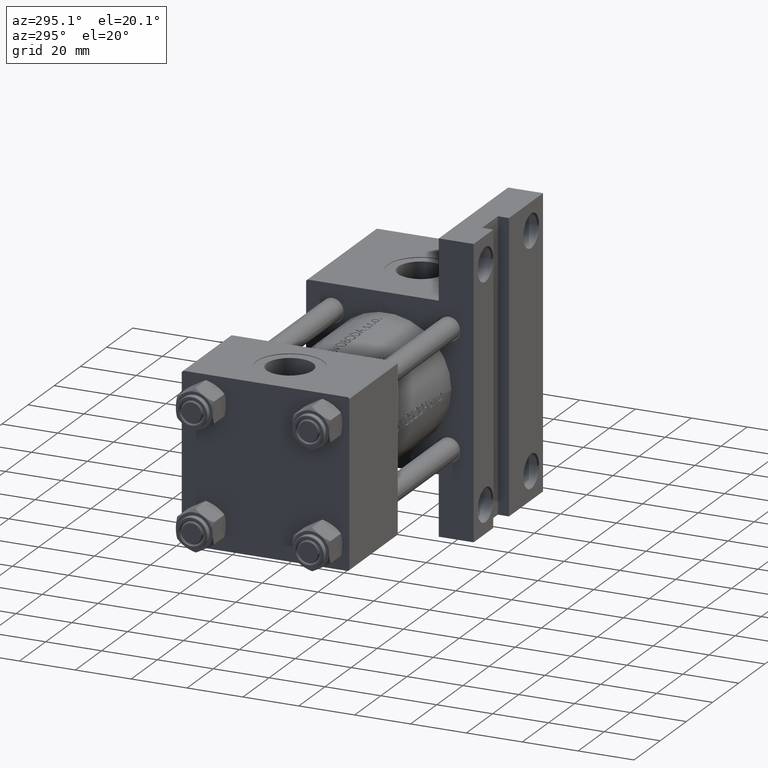
[diagram: clean part render]
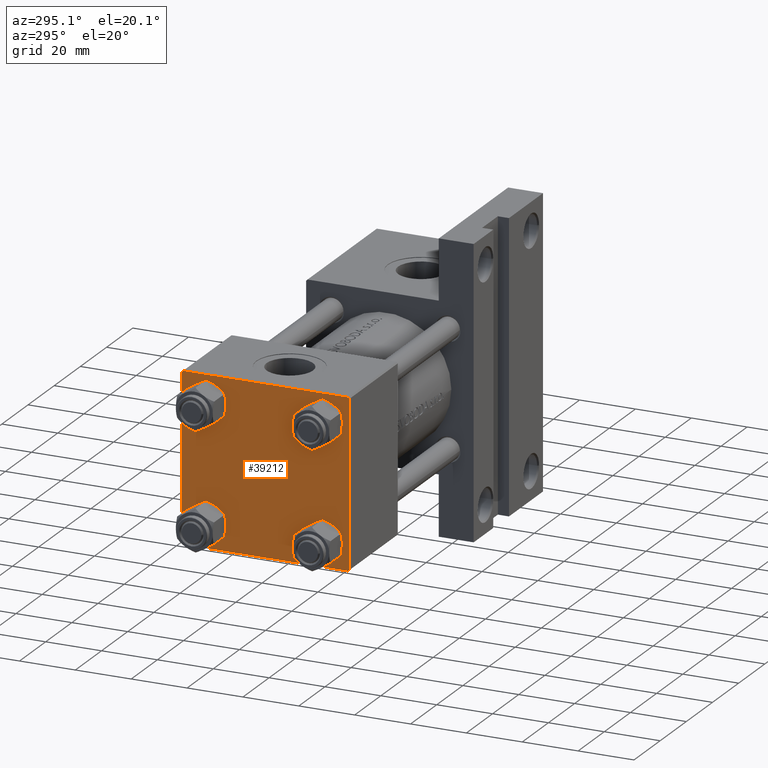
[diagram: same view with one face highlighted and labeled with its STEP entity id]
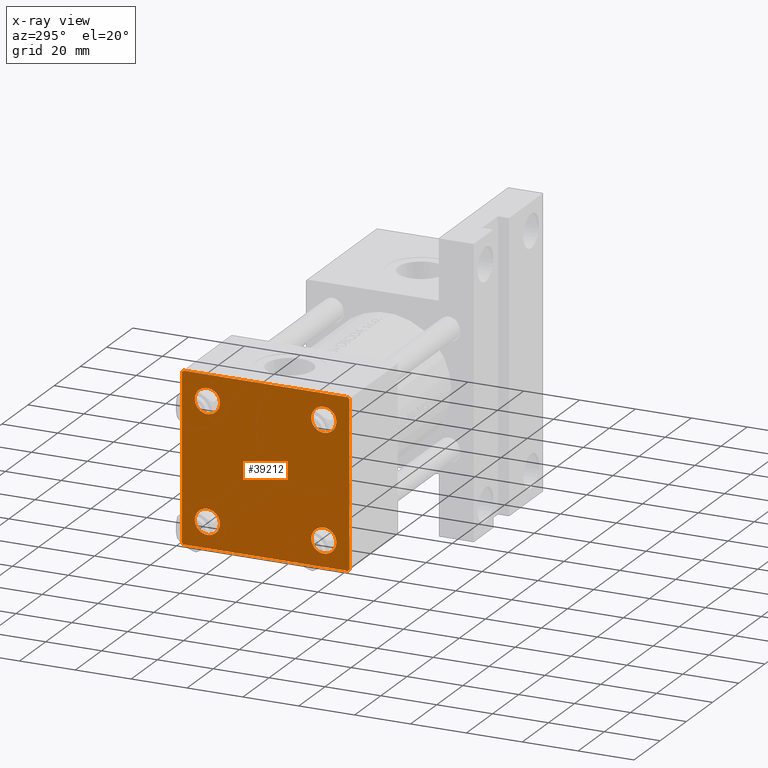
[diagram: x-ray of the same camera — body ghosted, the highlighted face saturated]
A machine part, auxiliary view. The second image highlights one B-rep face of the part: STEP entity #39212.
The next image is the same camera in x-ray: the body ghosted, the highlighted face saturated — about 0% of this face is hidden behind the body in this view.
In plain terms, the highlighted planar face has unit normal (-1, 0, -0).
Its self-contained STEP definition (entity closure, byte-faithful):
#983 = CARTESIAN_POINT ( 'NONE',  ( 0.000000000000000000, -29.50000000000000000, -30.00000000000000711 ) ) ;
#1005 = EDGE_CURVE ( 'NONE', #15092, #2212, #10377, .T. ) ;
#1360 = VECTOR ( 'NONE', #22433, 1000.000000000000114 ) ;
#1434 = DIRECTION ( 'NONE',  ( 0.000000000000000000, 0.000000000000000000, 1.000000000000000000 ) ) ;
#1647 = ORIENTED_EDGE ( 'NONE', *, *, #3237, .T. ) ;
#2100 = LINE ( 'NONE', #20533, #19711 ) ;
#2212 = VERTEX_POINT ( 'NONE', #14441 ) ;
#2748 = EDGE_CURVE ( 'NONE', #46231, #46448, #26804, .T. ) ;
#2845 = CARTESIAN_POINT ( 'NONE',  ( 0.000000000000000000, 29.74999999999957723, -29.75000000000040501 ) ) ;
#3190 = EDGE_CURVE ( 'NONE', #28763, #22838, #12821, .T. ) ;
#3237 = EDGE_CURVE ( 'NONE', #2212, #15092, #14413, .T. ) ;
#3516 = CARTESIAN_POINT ( 'NONE',  ( 0.000000000000000000, 20.84999999999999787, -20.85000000000000142 ) ) ;
#4081 = VERTEX_POINT ( 'NONE', #28209 ) ;
#4368 = FACE_OUTER_BOUND ( 'NONE', #15277, .T. ) ;
#4466 = DIRECTION ( 'NONE',  ( -0.000000000000000000, 0.7071067811865474617, 0.7071067811865474617 ) ) ;
#4612 = LINE ( 'NONE', #23770, #29926 ) ;
#4692 = CARTESIAN_POINT ( 'NONE',  ( 0.000000000000000000, -30.00000000000000000, 29.99999999999999289 ) ) ;
#4827 = CARTESIAN_POINT ( 'NONE',  ( 0.000000000000000000, 29.49999999999997868, -30.00000000000000000 ) ) ;
#4840 = EDGE_CURVE ( 'NONE', #28229, #34209, #17636, .T. ) ;
#5103 = DIRECTION ( 'NONE',  ( -0.000000000000000000, 0.000000000000000000, 1.000000000000000000 ) ) ;
#6185 = CARTESIAN_POINT ( 'NONE',  ( 0.000000000000000000, 20.84999999999999787, -16.34999999999998366 ) ) ;
#6198 = VECTOR ( 'NONE', #8685, 1000.000000000000000 ) ;
#6743 = AXIS2_PLACEMENT_3D ( 'NONE', #17361, #22070, #44874 ) ;
#6769 = VERTEX_POINT ( 'NONE', #983 ) ;
#6923 = ORIENTED_EDGE ( 'NONE', *, *, #4840, .T. ) ;
#7765 = VECTOR ( 'NONE', #18283, 999.9999999999998863 ) ;
#7860 = EDGE_CURVE ( 'NONE', #14239, #46448, #15663, .T. ) ;
#7940 = LINE ( 'NONE', #23128, #6198 ) ;
#8685 = DIRECTION ( 'NONE',  ( 0.000000000000000000, -1.000000000000000000, -1.156482317317871725E-16 ) ) ;
#8867 = DIRECTION ( 'NONE',  ( 0.000000000000000000, 0.000000000000000000, 1.000000000000000000 ) ) ;
#10377 = CIRCLE ( 'NONE', #37347, 4.500000000000017764 ) ;
#11669 = EDGE_LOOP ( 'NONE', ( #1647, #26874 ) ) ;
#11674 = EDGE_CURVE ( 'NONE', #45737, #29521, #44706, .T. ) ;
#11824 = PLANE ( 'NONE',  #15614 ) ;
#11911 = EDGE_CURVE ( 'NONE', #29521, #45737, #14595, .T. ) ;
#12445 = ORIENTED_EDGE ( 'NONE', *, *, #11674, .T. ) ;
#12821 = CIRCLE ( 'NONE', #15207, 4.500000000000017764 ) ;
#13832 = VERTEX_POINT ( 'NONE', #19920 ) ;
#14031 = DIRECTION ( 'NONE',  ( 1.000000000000000000, -0.000000000000000000, 0.000000000000000000 ) ) ;
#14129 = CARTESIAN_POINT ( 'NONE',  ( 0.000000000000000000, -20.84999999999999076, -20.85000000000000497 ) ) ;
#14239 = VERTEX_POINT ( 'NONE', #16619 ) ;
#14272 = CARTESIAN_POINT ( 'NONE',  ( 0.000000000000000000, 20.84999999999999787, -20.85000000000000142 ) ) ;
#14413 = CIRCLE ( 'NONE', #41383, 4.500000000000017764 ) ;
#14441 = CARTESIAN_POINT ( 'NONE',  ( 0.000000000000000000, 20.84999999999999787, 25.35000000000001918 ) ) ;
#14595 = CIRCLE ( 'NONE', #6743, 4.500000000000017764 ) ;
#14737 = EDGE_LOOP ( 'NONE', ( #35573, #12445 ) ) ;
#15023 = LINE ( 'NONE', #2845, #7765 ) ;
#15092 = VERTEX_POINT ( 'NONE', #18637 ) ;
#15207 = AXIS2_PLACEMENT_3D ( 'NONE', #14272, #14031, #29408 ) ;
#15277 = EDGE_LOOP ( 'NONE', ( #40509, #38368, #43915, #38100, #36285, #45072, #37467, #28589 ) ) ;
#15569 = FACE_BOUND ( 'NONE', #14737, .T. ) ;
#15614 = AXIS2_PLACEMENT_3D ( 'NONE', #23041, #19305, #5103 ) ;
#15663 = LINE ( 'NONE', #23372, #45464 ) ;
#16619 = CARTESIAN_POINT ( 'NONE',  ( 0.000000000000000000, -30.00000000000000000, 29.49999999999999289 ) ) ;
#17361 = CARTESIAN_POINT ( 'NONE',  ( 0.000000000000000000, -20.84999999999999076, 20.85000000000000497 ) ) ;
#17636 = CIRCLE ( 'NONE', #18448, 4.500000000000017764 ) ;
#18283 = DIRECTION ( 'NONE',  ( -0.000000000000000000, -0.7071067811865574537, -0.7071067811865376918 ) ) ;
#18448 = AXIS2_PLACEMENT_3D ( 'NONE', #42876, #42635, #8867 ) ;
#18637 = CARTESIAN_POINT ( 'NONE',  ( 0.000000000000000000, 20.84999999999999787, 16.34999999999998366 ) ) ;
#18913 = AXIS2_PLACEMENT_3D ( 'NONE', #3516, #21474, #36588 ) ;
#19305 = DIRECTION ( 'NONE',  ( -1.000000000000000000, 0.000000000000000000, -0.000000000000000000 ) ) ;
#19711 = VECTOR ( 'NONE', #32158, 1000.000000000000114 ) ;
#19920 = CARTESIAN_POINT ( 'NONE',  ( 0.000000000000000000, -30.00000000000000000, -29.50000000000001776 ) ) ;
#20042 = DIRECTION ( 'NONE',  ( 0.000000000000000000, 0.000000000000000000, -1.000000000000000000 ) ) ;
#20110 = CARTESIAN_POINT ( 'NONE',  ( 0.000000000000000000, -20.84999999999999076, 20.85000000000000497 ) ) ;
#20149 = EDGE_LOOP ( 'NONE', ( #23136, #6923 ) ) ;
#20193 = CARTESIAN_POINT ( 'NONE',  ( 0.000000000000000000, -20.84999999999999076, 16.34999999999998721 ) ) ;
#20285 = EDGE_CURVE ( 'NONE', #4081, #21368, #4612, .T. ) ;
#20533 = CARTESIAN_POINT ( 'NONE',  ( 0.000000000000000000, 29.74999999999999645, 29.74999999999999645 ) ) ;
#20540 = DIRECTION ( 'NONE',  ( 1.000000000000000000, -0.000000000000000000, 0.000000000000000000 ) ) ;
#21368 = VERTEX_POINT ( 'NONE', #47325 ) ;
#21474 = DIRECTION ( 'NONE',  ( 1.000000000000000000, -0.000000000000000000, 0.000000000000000000 ) ) ;
#21520 = EDGE_CURVE ( 'NONE', #21368, #47450, #15023, .T. ) ;
#22070 = DIRECTION ( 'NONE',  ( 1.000000000000000000, -0.000000000000000000, 0.000000000000000000 ) ) ;
#22260 = EDGE_CURVE ( 'NONE', #46231, #4081, #2100, .T. ) ;
#22433 = DIRECTION ( 'NONE',  ( 0.000000000000000000, -0.7071067811865474617, 0.7071067811865474617 ) ) ;
#22838 = VERTEX_POINT ( 'NONE', #34232 ) ;
#22849 = CARTESIAN_POINT ( 'NONE',  ( 0.000000000000000000, 29.99999999999999289, 30.00000000000000000 ) ) ;
#23041 = CARTESIAN_POINT ( 'NONE',  ( 0.000000000000000000, 0.000000000000000000, 0.000000000000000000 ) ) ;
#23128 = CARTESIAN_POINT ( 'NONE',  ( 0.000000000000000000, 29.99999999999999289, -30.00000000000000000 ) ) ;
#23136 = ORIENTED_EDGE ( 'NONE', *, *, #36233, .T. ) ;
#23338 = AXIS2_PLACEMENT_3D ( 'NONE', #20110, #45919, #1434 ) ;
#23372 = CARTESIAN_POINT ( 'NONE',  ( -0.000000000000000000, -29.74999999999999645, 29.74999999999999645 ) ) ;
#23501 = CIRCLE ( 'NONE', #29799, 4.500000000000017764 ) ;
#23770 = CARTESIAN_POINT ( 'NONE',  ( 0.000000000000000000, 29.99999999999999289, 30.00000000000000000 ) ) ;
#24011 = FACE_BOUND ( 'NONE', #20149, .T. ) ;
#24157 = EDGE_LOOP ( 'NONE', ( #34023, #33273 ) ) ;
#24331 = DIRECTION ( 'NONE',  ( 0.000000000000000000, 0.000000000000000000, -1.000000000000000000 ) ) ;
#26804 = LINE ( 'NONE', #22849, #36580 ) ;
#26874 = ORIENTED_EDGE ( 'NONE', *, *, #1005, .T. ) ;
#28209 = CARTESIAN_POINT ( 'NONE',  ( 0.000000000000000000, 29.99999999999999289, 29.50000000000000000 ) ) ;
#28229 = VERTEX_POINT ( 'NONE', #42509 ) ;
#28589 = ORIENTED_EDGE ( 'NONE', *, *, #22260, .T. ) ;
#28763 = VERTEX_POINT ( 'NONE', #6185 ) ;
#29408 = DIRECTION ( 'NONE',  ( 0.000000000000000000, 0.000000000000000000, 1.000000000000000000 ) ) ;
#29521 = VERTEX_POINT ( 'NONE', #33272 ) ;
#29799 = AXIS2_PLACEMENT_3D ( 'NONE', #14129, #47891, #37208 ) ;
#29926 = VECTOR ( 'NONE', #20042, 1000.000000000000000 ) ;
#30691 = FACE_BOUND ( 'NONE', #24157, .T. ) ;
#30718 = VECTOR ( 'NONE', #24331, 1000.000000000000000 ) ;
#30954 = CARTESIAN_POINT ( 'NONE',  ( 0.000000000000000000, 29.49999999999999289, 30.00000000000000000 ) ) ;
#32158 = DIRECTION ( 'NONE',  ( 0.000000000000000000, 0.7071067811865474617, -0.7071067811865474617 ) ) ;
#33081 = LINE ( 'NONE', #48244, #1360 ) ;
#33267 = CARTESIAN_POINT ( 'NONE',  ( 0.000000000000000000, -20.84999999999999076, -16.34999999999998721 ) ) ;
#33272 = CARTESIAN_POINT ( 'NONE',  ( 0.000000000000000000, -20.84999999999999076, 25.35000000000002274 ) ) ;
#33273 = ORIENTED_EDGE ( 'NONE', *, *, #46783, .T. ) ;
#34023 = ORIENTED_EDGE ( 'NONE', *, *, #3190, .T. ) ;
#34209 = VERTEX_POINT ( 'NONE', #33267 ) ;
#34232 = CARTESIAN_POINT ( 'NONE',  ( 0.000000000000000000, 20.84999999999999787, -25.35000000000001918 ) ) ;
#35573 = ORIENTED_EDGE ( 'NONE', *, *, #11911, .T. ) ;
#36233 = EDGE_CURVE ( 'NONE', #34209, #28229, #23501, .T. ) ;
#36285 = ORIENTED_EDGE ( 'NONE', *, *, #43841, .F. ) ;
#36385 = DIRECTION ( 'NONE',  ( 0.000000000000000000, 0.000000000000000000, 1.000000000000000000 ) ) ;
#36580 = VECTOR ( 'NONE', #45907, 1000.000000000000000 ) ;
#36588 = DIRECTION ( 'NONE',  ( 0.000000000000000000, 0.000000000000000000, 1.000000000000000000 ) ) ;
#37208 = DIRECTION ( 'NONE',  ( 0.000000000000000000, 0.000000000000000000, 1.000000000000000000 ) ) ;
#37347 = AXIS2_PLACEMENT_3D ( 'NONE', #39370, #20540, #42172 ) ;
#37467 = ORIENTED_EDGE ( 'NONE', *, *, #2748, .F. ) ;
#38100 = ORIENTED_EDGE ( 'NONE', *, *, #40646, .T. ) ;
#38145 = FACE_BOUND ( 'NONE', #11669, .T. ) ;
#38368 = ORIENTED_EDGE ( 'NONE', *, *, #21520, .T. ) ;
#38718 = LINE ( 'NONE', #4692, #30718 ) ;
#39212 = ADVANCED_FACE ( 'NONE', ( #15569, #24011, #30691, #38145, #4368 ), #11824, .T. ) ;
#39370 = CARTESIAN_POINT ( 'NONE',  ( 0.000000000000000000, 20.84999999999999787, 20.85000000000000142 ) ) ;
#40509 = ORIENTED_EDGE ( 'NONE', *, *, #20285, .T. ) ;
#40646 = EDGE_CURVE ( 'NONE', #6769, #13832, #33081, .T. ) ;
#41383 = AXIS2_PLACEMENT_3D ( 'NONE', #47796, #43824, #36385 ) ;
#41883 = CIRCLE ( 'NONE', #18913, 4.500000000000017764 ) ;
#42172 = DIRECTION ( 'NONE',  ( 0.000000000000000000, 0.000000000000000000, 1.000000000000000000 ) ) ;
#42509 = CARTESIAN_POINT ( 'NONE',  ( 0.000000000000000000, -20.84999999999999076, -25.35000000000002274 ) ) ;
#42635 = DIRECTION ( 'NONE',  ( 1.000000000000000000, -0.000000000000000000, 0.000000000000000000 ) ) ;
#42876 = CARTESIAN_POINT ( 'NONE',  ( 0.000000000000000000, -20.84999999999999076, -20.85000000000000497 ) ) ;
#43824 = DIRECTION ( 'NONE',  ( 1.000000000000000000, -0.000000000000000000, 0.000000000000000000 ) ) ;
#43841 = EDGE_CURVE ( 'NONE', #14239, #13832, #38718, .T. ) ;
#43915 = ORIENTED_EDGE ( 'NONE', *, *, #46043, .T. ) ;
#44343 = CARTESIAN_POINT ( 'NONE',  ( 0.000000000000000000, -29.49999999999998579, 29.99999999999999289 ) ) ;
#44706 = CIRCLE ( 'NONE', #23338, 4.500000000000017764 ) ;
#44874 = DIRECTION ( 'NONE',  ( 0.000000000000000000, 0.000000000000000000, 1.000000000000000000 ) ) ;
#45072 = ORIENTED_EDGE ( 'NONE', *, *, #7860, .T. ) ;
#45464 = VECTOR ( 'NONE', #4466, 1000.000000000000114 ) ;
#45737 = VERTEX_POINT ( 'NONE', #20193 ) ;
#45907 = DIRECTION ( 'NONE',  ( 0.000000000000000000, -1.000000000000000000, -1.156482317317871725E-16 ) ) ;
#45919 = DIRECTION ( 'NONE',  ( 1.000000000000000000, -0.000000000000000000, 0.000000000000000000 ) ) ;
#46043 = EDGE_CURVE ( 'NONE', #47450, #6769, #7940, .T. ) ;
#46231 = VERTEX_POINT ( 'NONE', #30954 ) ;
#46448 = VERTEX_POINT ( 'NONE', #44343 ) ;
#46783 = EDGE_CURVE ( 'NONE', #22838, #28763, #41883, .T. ) ;
#47325 = CARTESIAN_POINT ( 'NONE',  ( 0.000000000000000000, 29.99999999999999289, -29.50000000000000000 ) ) ;
#47450 = VERTEX_POINT ( 'NONE', #4827 ) ;
#47796 = CARTESIAN_POINT ( 'NONE',  ( 0.000000000000000000, 20.84999999999999787, 20.85000000000000142 ) ) ;
#47891 = DIRECTION ( 'NONE',  ( 1.000000000000000000, -0.000000000000000000, 0.000000000000000000 ) ) ;
#48244 = CARTESIAN_POINT ( 'NONE',  ( 0.000000000000000000, -29.75000000000001066, -29.75000000000001066 ) ) ;